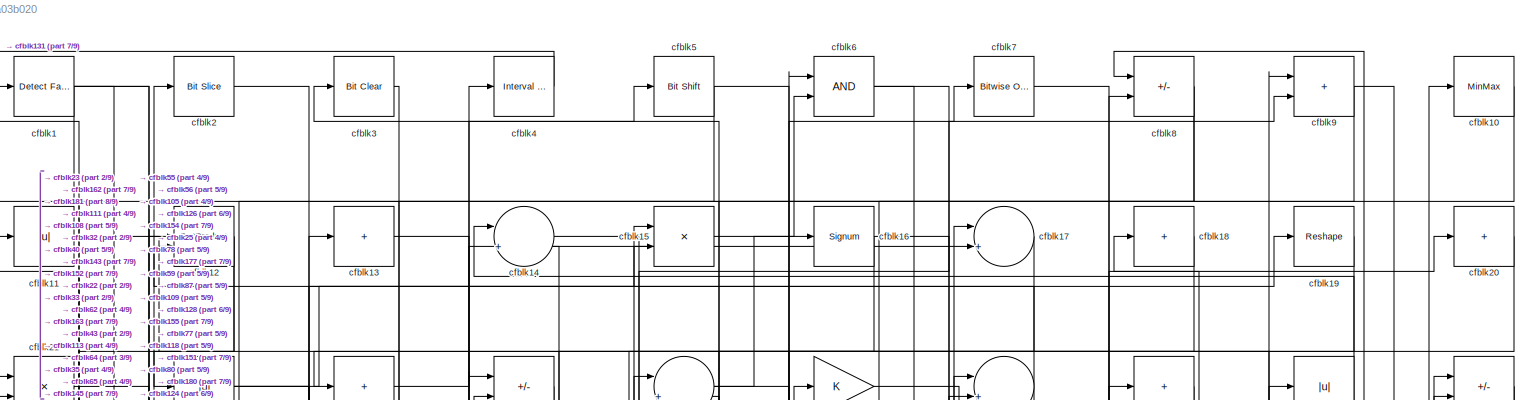
[diagram: root canvas - part 1/9, full width, top band]
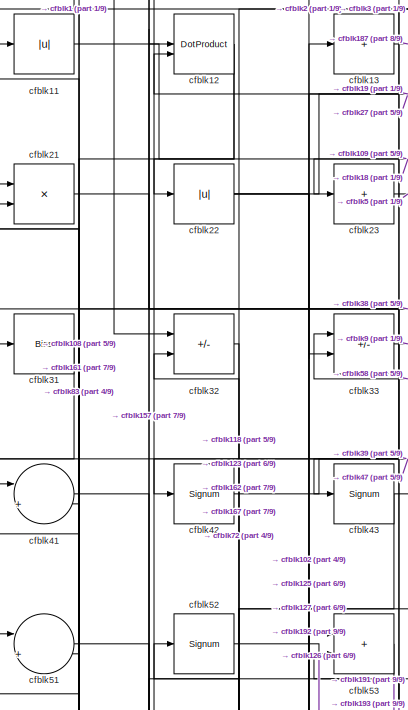
[diagram: root canvas - part 2/9, top left region]
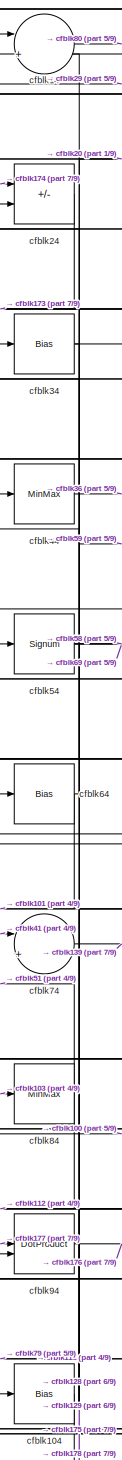
[diagram: root canvas - part 3/9, top center region]
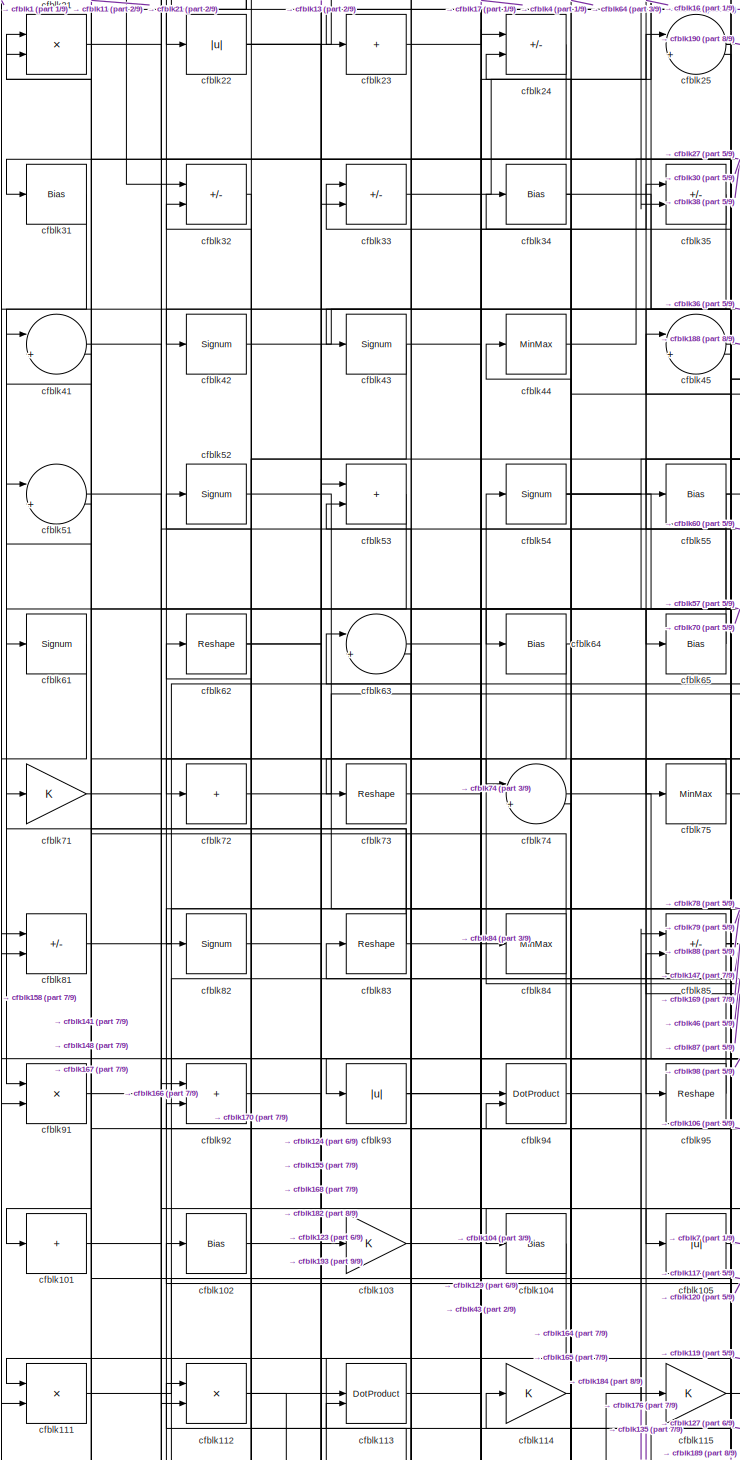
[diagram: root canvas - part 4/9, middle left region]
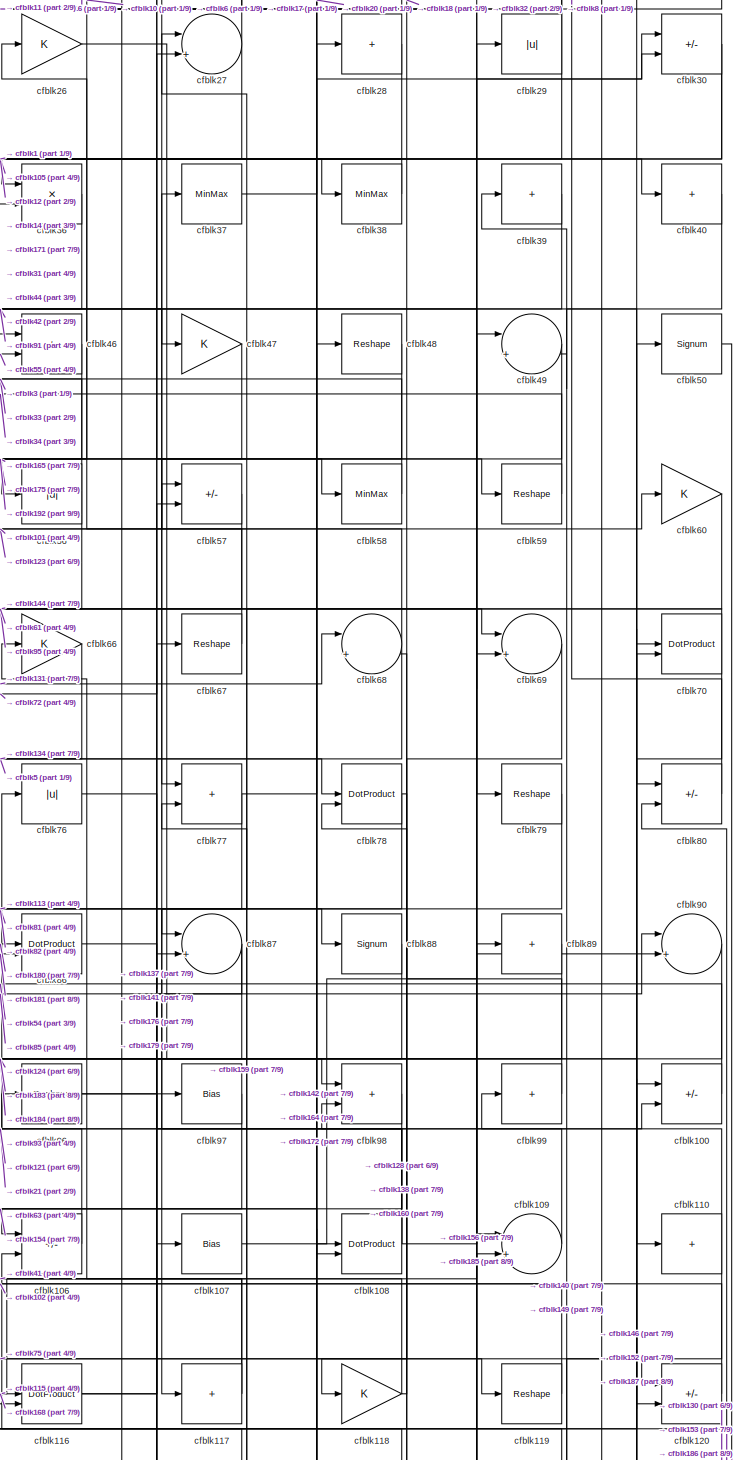
[diagram: root canvas - part 5/9, middle right region]
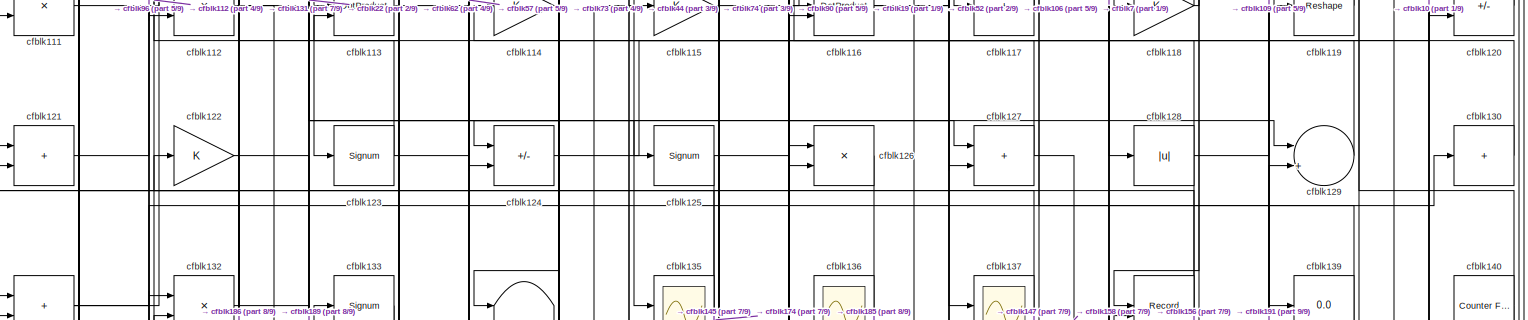
[diagram: root canvas - part 6/9, full width, middle band]
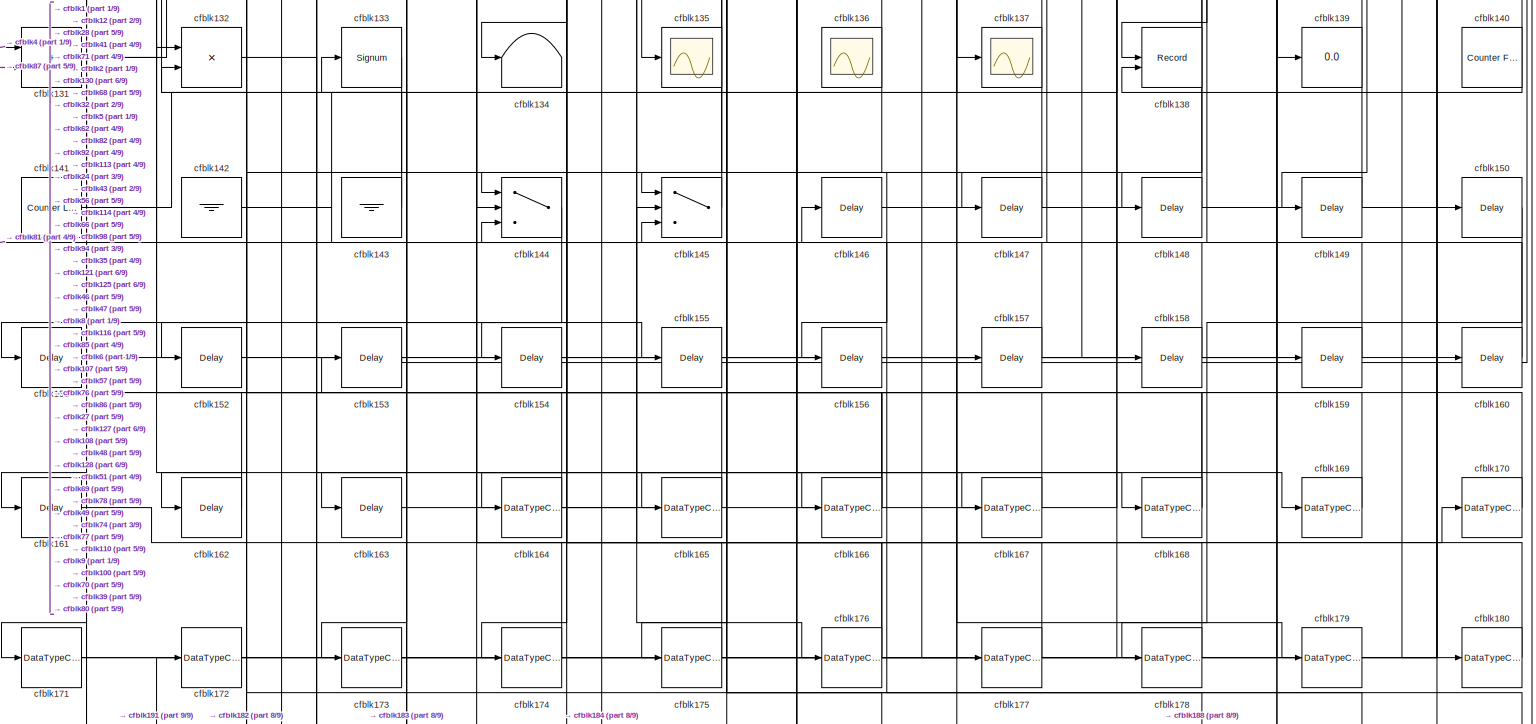
[diagram: root canvas - part 7/9, full width, bottom band]
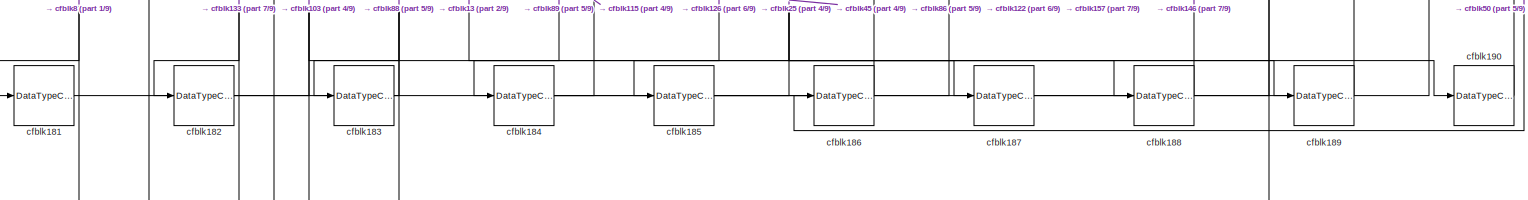
[diagram: root canvas - part 8/9, full width, bottom band]
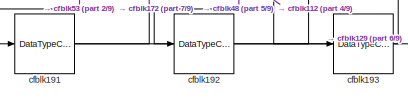
[diagram: root canvas - part 9/9, bottom left region]
MODEL slx_ab909a03b020
KIND model
CONFIG AbsTol = auto
CONFIG EnableMultiTasking = off
CONFIG FixedStep = auto
CONFIG MaxStep = auto
CONFIG MinStep = auto
CONFIG RelTol = 1e-3
CONFIG SampleTimeConstraint = Unconstrained
CONFIG SolverName = VariableStepAuto
CONFIG StartTime = 0.0
CONFIG StopTime = 10.0
BLOCK [Reference] cfblk1  REF=hdlsllib/Logic and Bit
Operations/Detect Fall
Negative
  SourceBlock = hdlsllib/Logic and Bit\nOperations/Detect Fall\nNegative
  SourceType = Detect Fall Negative
BLOCK [MinMax] cfblk10
BLOCK [Sum] cfblk100
  IconShape = rectangular
  Inputs = +-
BLOCK [Sum] cfblk101
  IconShape = rectangular
  Inputs = +
BLOCK [Bias] cfblk102
  Bias = 0.0
  SaturateOnIntegerOverflow = off
BLOCK [Gain] cfblk103
BLOCK [Bias] cfblk104
  Bias = 0.0
  SaturateOnIntegerOverflow = off
BLOCK [Abs] cfblk105
  SaturateOnIntegerOverflow = off
BLOCK [Sum] cfblk106
  IconShape = rectangular
  Inputs = +-
BLOCK [Bias] cfblk107
  Bias = 0.0
  SaturateOnIntegerOverflow = off
BLOCK [DotProduct] cfblk108
  OutDataTypeStr = Inherit: Inherit via internal rule
BLOCK [Sum] cfblk109
  Inputs = |++
BLOCK [Abs] cfblk11
  SaturateOnIntegerOverflow = off
BLOCK [Sum] cfblk110
  IconShape = rectangular
  Inputs = +
BLOCK [Product] cfblk111
  Inputs = */
  RndMeth = Zero
  SaturateOnIntegerOverflow = on
BLOCK [Product] cfblk112
  Inputs = */
  RndMeth = Zero
  SaturateOnIntegerOverflow = on
BLOCK [DotProduct] cfblk113
  OutDataTypeStr = Inherit: Inherit via internal rule
BLOCK [Gain] cfblk114
BLOCK [Gain] cfblk115
BLOCK [DotProduct] cfblk116
  OutDataTypeStr = Inherit: Inherit via internal rule
BLOCK [Sum] cfblk117
  IconShape = rectangular
  Inputs = +
BLOCK [Gain] cfblk118
BLOCK [Reshape] cfblk119
BLOCK [DotProduct] cfblk12
  OutDataTypeStr = Inherit: Inherit via internal rule
BLOCK [Sum] cfblk120
  IconShape = rectangular
  Inputs = +-
BLOCK [Sum] cfblk121
  IconShape = rectangular
BLOCK [Gain] cfblk122
BLOCK [Signum] cfblk123
BLOCK [Sum] cfblk124
  IconShape = rectangular
  Inputs = +-
BLOCK [Signum] cfblk125
BLOCK [Product] cfblk126
  Inputs = */
  RndMeth = Zero
  SaturateOnIntegerOverflow = on
BLOCK [Sum] cfblk127
  IconShape = rectangular
BLOCK [Abs] cfblk128
  SaturateOnIntegerOverflow = off
BLOCK [Sum] cfblk129
  Inputs = |++
BLOCK [Sum] cfblk13
  IconShape = rectangular
  Inputs = +
BLOCK [Sum] cfblk130
  IconShape = rectangular
  Inputs = +
BLOCK [Sum] cfblk131
  IconShape = rectangular
BLOCK [Product] cfblk132
  Inputs = */
  RndMeth = Zero
  SaturateOnIntegerOverflow = on
BLOCK [Signum] cfblk133
BLOCK [Terminator] cfblk134
BLOCK [Scope] cfblk135
  Floating = off
  NumInputPorts = 1
  ScopeSpecificationString = Simulink.scopes.TimeScopeBlockCfg('CurrentConfiguration', extmgr.ConfigurationSet(extmgr.Configuration('Core','General UI',true),extmgr.Configuration('Core','Source UI',true),extmgr.Configuration('Sources','WiredSimulink',true,'DataLoggingVariableName','ScopeData2','DataLoggingSaveFormat','Array','DataLoggingLimitDataPoints',true,'DataLoggingDecimation','1'),extmgr.Configuration('Visuals','Time Do...<+868ch>
BLOCK [Scope] cfblk136
  Floating = on
  NumInputPorts = 1
  ScopeSpecificationString = Simulink.scopes.TimeScopeBlockCfg('CurrentConfiguration', extmgr.ConfigurationSet(extmgr.Configuration('Core','General UI',true,'FigureColor',[0.156862745098039 0.156862745098039 0.156862745098039]),extmgr.Configuration('Core','Source UI',true),extmgr.Configuration('Sources','WiredSimulink',true,'DataLoggingVariableName','ScopeData1','DataLoggingSaveFormat','StructureWithTime','DataLoggingLimitDat...<+2713ch>
BLOCK [Scope] cfblk137
  Floating = off
  NumInputPorts = 1
  ScopeSpecificationString = Simulink.scopes.TimeScopeBlockCfg('CurrentConfiguration', extmgr.ConfigurationSet(extmgr.Configuration('Core','General UI',true),extmgr.Configuration('Core','Source UI',true),extmgr.Configuration('Sources','WiredSimulink',true,'DataLoggingVariableName','ScopeData2','DataLoggingSaveFormat','Array','DataLoggingLimitDataPoints',true,'DataLoggingDecimation','1'),extmgr.Configuration('Visuals','Time Do...<+868ch>
BLOCK [Record] cfblk138
  CompatibilityTag = XY
  FileSettingsInternal = {"entries":[{"content":{"excelSettings":{"content":{},"type":"Streamout.ExcelSettings"}},"type":"Streamout.FileSettingStorage","uuid":""}],"packageUris":["http:\/\/schema.mathworks.com\/mf0\/streamout_blocks\/R2020a"],"version":"1.0"}
  Layout = [1 1]
  SignalsInternal = {"entries":[{"content":{"signals":[{"content":{"blockPath":[],"dimensions":[1],"domain":"","lineColor":"#a2142f","plots":[1],"port":1,"signalID":3847,"signalName":"XY Graph:1"},"type":"RecordBlkView.Signal","uuid":""},{"content":{"blockPath":[],"dimensions":[1],"domain":"","lineColor":"#139fff","plots":[1],"port":2,"signalID":3850,"signalName":"XY Graph:2"},"type":"RecordBlkView.Signal","uuid":""}...<+146ch>
  VisualizationBindings = {"xyplotplugin":{"info":[{"series":[{"bindingParametersList":[{"parameter":"X-Axis","signalID":3847,"signalName":"XY Graph:1"},{"parameter":"Y-Axis","signalID":3850,"signalName":"XY Graph:2"}],"seriesID":23511}],"subplotID":1}]}}
  st = -1
BLOCK [Display] cfblk139
  Decimation = 1
BLOCK [Sum] cfblk14
  Inputs = |++
BLOCK [Reference] cfblk140  REF=hdlsllib/Sources/Counter
Free-Running
  SourceBlock = hdlsllib/Sources/Counter\nFree-Running
  SourceType = Counter Free-Running
BLOCK [Reference] cfblk141  REF=hdlsllib/Sources/Counter
Limited
  SourceBlock = hdlsllib/Sources/Counter\nLimited
  SourceType = Counter Limited
BLOCK [Ground] cfblk142
BLOCK [Ground] cfblk143
BLOCK [Switch] cfblk144
  InputSameDT = off
  SaturateOnIntegerOverflow = off
BLOCK [Switch] cfblk145
  InputSameDT = off
  SaturateOnIntegerOverflow = off
BLOCK [Delay] cfblk146
  InputPortMap = u0
  SampleTime = 1
BLOCK [Delay] cfblk147
  InputPortMap = u0
  SampleTime = 1
BLOCK [Delay] cfblk148
  InputPortMap = u0
  SampleTime = 1
BLOCK [Delay] cfblk149
  InputPortMap = u0
  SampleTime = 1
BLOCK [Product] cfblk15
  Inputs = */
  RndMeth = Zero
  SaturateOnIntegerOverflow = on
BLOCK [Delay] cfblk150
  InputPortMap = u0
  SampleTime = 1
BLOCK [Delay] cfblk151
  InputPortMap = u0
  SampleTime = 1
BLOCK [Delay] cfblk152
  InputPortMap = u0
  SampleTime = 1
BLOCK [Delay] cfblk153
  InputPortMap = u0
  SampleTime = 1
BLOCK [Delay] cfblk154
  InputPortMap = u0
  SampleTime = 1
BLOCK [Delay] cfblk155
  InputPortMap = u0
  SampleTime = 1
BLOCK [Delay] cfblk156
  InputPortMap = u0
  SampleTime = 1
BLOCK [Delay] cfblk157
  InputPortMap = u0
  SampleTime = 1
BLOCK [Delay] cfblk158
  InputPortMap = u0
  SampleTime = 1
BLOCK [Delay] cfblk159
  InputPortMap = u0
  SampleTime = 1
BLOCK [Signum] cfblk16
BLOCK [Delay] cfblk160
  InputPortMap = u0
  SampleTime = 1
BLOCK [Delay] cfblk161
  InputPortMap = u0
  SampleTime = 1
BLOCK [Delay] cfblk162
  InputPortMap = u0
  SampleTime = 1
BLOCK [Delay] cfblk163
  InputPortMap = u0
  SampleTime = 1
BLOCK [DataTypeConversion] cfblk164
  RndMeth = Floor
  SaturateOnIntegerOverflow = off
BLOCK [DataTypeConversion] cfblk165
  OutDataTypeStr = uint8
  RndMeth = Floor
  SaturateOnIntegerOverflow = off
BLOCK [DataTypeConversion] cfblk166
  RndMeth = Floor
  SaturateOnIntegerOverflow = off
BLOCK [DataTypeConversion] cfblk167
  OutDataTypeStr = uint8
  RndMeth = Floor
  SaturateOnIntegerOverflow = off
BLOCK [DataTypeConversion] cfblk168
  RndMeth = Floor
  SaturateOnIntegerOverflow = off
BLOCK [DataTypeConversion] cfblk169
  OutDataTypeStr = uint8
  RndMeth = Floor
  SaturateOnIntegerOverflow = off
BLOCK [Sum] cfblk17
  Inputs = |++
BLOCK [DataTypeConversion] cfblk170
  OutDataTypeStr = uint8
  RndMeth = Floor
  SaturateOnIntegerOverflow = off
BLOCK [DataTypeConversion] cfblk171
  RndMeth = Floor
  SaturateOnIntegerOverflow = off
BLOCK [DataTypeConversion] cfblk172
  OutDataTypeStr = uint8
  RndMeth = Floor
  SaturateOnIntegerOverflow = off
BLOCK [DataTypeConversion] cfblk173
  OutDataTypeStr = uint8
  RndMeth = Floor
  SaturateOnIntegerOverflow = off
BLOCK [DataTypeConversion] cfblk174
  OutDataTypeStr = uint8
  RndMeth = Floor
  SaturateOnIntegerOverflow = off
BLOCK [DataTypeConversion] cfblk175
  OutDataTypeStr = uint8
  RndMeth = Floor
  SaturateOnIntegerOverflow = off
BLOCK [DataTypeConversion] cfblk176
  RndMeth = Floor
  SaturateOnIntegerOverflow = off
BLOCK [DataTypeConversion] cfblk177
  OutDataTypeStr = uint8
  RndMeth = Floor
  SaturateOnIntegerOverflow = off
BLOCK [DataTypeConversion] cfblk178
  OutDataTypeStr = uint8
  RndMeth = Floor
  SaturateOnIntegerOverflow = off
BLOCK [DataTypeConversion] cfblk179
  OutDataTypeStr = uint8
  RndMeth = Floor
  SaturateOnIntegerOverflow = off
BLOCK [Sum] cfblk18
  IconShape = rectangular
  Inputs = +
BLOCK [DataTypeConversion] cfblk180
  OutDataTypeStr = uint8
  RndMeth = Floor
  SaturateOnIntegerOverflow = off
BLOCK [DataTypeConversion] cfblk181
  OutDataTypeStr = uint8
  RndMeth = Floor
  SaturateOnIntegerOverflow = off
BLOCK [DataTypeConversion] cfblk182
  OutDataTypeStr = uint8
  RndMeth = Floor
  SaturateOnIntegerOverflow = off
BLOCK [DataTypeConversion] cfblk183
  OutDataTypeStr = uint8
  RndMeth = Floor
  SaturateOnIntegerOverflow = off
BLOCK [DataTypeConversion] cfblk184
  RndMeth = Floor
  SaturateOnIntegerOverflow = off
BLOCK [DataTypeConversion] cfblk185
  OutDataTypeStr = uint8
  RndMeth = Floor
  SaturateOnIntegerOverflow = off
BLOCK [DataTypeConversion] cfblk186
  OutDataTypeStr = uint8
  RndMeth = Floor
  SaturateOnIntegerOverflow = off
BLOCK [DataTypeConversion] cfblk187
  OutDataTypeStr = uint8
  RndMeth = Floor
  SaturateOnIntegerOverflow = off
BLOCK [DataTypeConversion] cfblk188
  OutDataTypeStr = uint8
  RndMeth = Floor
  SaturateOnIntegerOverflow = off
BLOCK [DataTypeConversion] cfblk189
  OutDataTypeStr = uint8
  RndMeth = Floor
  SaturateOnIntegerOverflow = off
BLOCK [Reshape] cfblk19
BLOCK [DataTypeConversion] cfblk190
  OutDataTypeStr = uint8
  RndMeth = Floor
  SaturateOnIntegerOverflow = off
BLOCK [DataTypeConversion] cfblk191
  RndMeth = Floor
  SaturateOnIntegerOverflow = off
BLOCK [DataTypeConversion] cfblk192
  OutDataTypeStr = uint8
  RndMeth = Floor
  SaturateOnIntegerOverflow = off
BLOCK [DataTypeConversion] cfblk193
  OutDataTypeStr = uint8
  RndMeth = Floor
  SaturateOnIntegerOverflow = off
BLOCK [Reference] cfblk2  REF=hdlsllib/Logic and Bit
Operations/Bit Slice
  SourceBlock = hdlsllib/Logic and Bit\nOperations/Bit Slice
  SourceType = Bit Slice
BLOCK [Sum] cfblk20
  IconShape = rectangular
  Inputs = +
BLOCK [Product] cfblk21
  Inputs = */
  RndMeth = Zero
  SaturateOnIntegerOverflow = on
BLOCK [Abs] cfblk22
  SaturateOnIntegerOverflow = off
BLOCK [Sum] cfblk23
  IconShape = rectangular
  Inputs = +
BLOCK [Sum] cfblk24
  IconShape = rectangular
  Inputs = +-
BLOCK [Sum] cfblk25
  Inputs = |++
BLOCK [Gain] cfblk26
BLOCK [Sum] cfblk27
  Inputs = |++
BLOCK [Sum] cfblk28
  IconShape = rectangular
  Inputs = +
BLOCK [Abs] cfblk29
  SaturateOnIntegerOverflow = off
BLOCK [Reference] cfblk3  REF=simulink/Logic and Bit
Operations/Bit Clear
  LibrarySourceBlock = hdlsllib/Logic and Bit\nOperations/Bit Clear
  SourceBlock = simulink/Logic and Bit\nOperations/Bit Clear
  SourceType = Bit Clear
BLOCK [Sum] cfblk30
  IconShape = rectangular
  Inputs = +-
BLOCK [Bias] cfblk31
  Bias = 0.0
  SaturateOnIntegerOverflow = off
BLOCK [Sum] cfblk32
  IconShape = rectangular
  Inputs = +-
BLOCK [Sum] cfblk33
  IconShape = rectangular
  Inputs = +-
BLOCK [Bias] cfblk34
  Bias = 0.0
  SaturateOnIntegerOverflow = off
BLOCK [Sum] cfblk35
  IconShape = rectangular
  Inputs = +-
BLOCK [Product] cfblk36
  Inputs = */
  RndMeth = Zero
  SaturateOnIntegerOverflow = on
BLOCK [MinMax] cfblk37
BLOCK [MinMax] cfblk38
BLOCK [Sum] cfblk39
  IconShape = rectangular
  Inputs = +
BLOCK [Reference] cfblk4  REF=hdlsllib/Logic and Bit
Operations/Interval Test
  SourceBlock = hdlsllib/Logic and Bit\nOperations/Interval Test
  SourceType = Interval Test
BLOCK [Sum] cfblk40
  IconShape = rectangular
  Inputs = +
BLOCK [Sum] cfblk41
  Inputs = |++
BLOCK [Signum] cfblk42
BLOCK [Signum] cfblk43
BLOCK [MinMax] cfblk44
BLOCK [Sum] cfblk45
  Inputs = |++
BLOCK [Sum] cfblk46
  IconShape = rectangular
BLOCK [Gain] cfblk47
BLOCK [Reshape] cfblk48
BLOCK [Sum] cfblk49
  Inputs = |++
BLOCK [Reference] cfblk5  REF=hdlsllib/Logic and Bit
Operations/Bit Shift
  SourceBlock = hdlsllib/Logic and Bit\nOperations/Bit Shift
  SourceType = Bit Shift
BLOCK [Signum] cfblk50
BLOCK [Sum] cfblk51
  Inputs = |++
BLOCK [Signum] cfblk52
BLOCK [Sum] cfblk53
  IconShape = rectangular
BLOCK [Signum] cfblk54
BLOCK [Bias] cfblk55
  Bias = 0.0
  SaturateOnIntegerOverflow = off
BLOCK [Abs] cfblk56
  SaturateOnIntegerOverflow = off
BLOCK [Sum] cfblk57
  IconShape = rectangular
  Inputs = +-
BLOCK [MinMax] cfblk58
BLOCK [Reshape] cfblk59
BLOCK [Logic] cfblk6
  AllPortsSameDT = off
  OutDataTypeStr = boolean
BLOCK [Gain] cfblk60
BLOCK [Signum] cfblk61
BLOCK [Reshape] cfblk62
BLOCK [Sum] cfblk63
  Inputs = |++
BLOCK [Bias] cfblk64
  Bias = 0.0
  SaturateOnIntegerOverflow = off
BLOCK [Bias] cfblk65
  Bias = 0.0
  SaturateOnIntegerOverflow = off
BLOCK [Gain] cfblk66
BLOCK [Reshape] cfblk67
BLOCK [Sum] cfblk68
  Inputs = |++
BLOCK [Sum] cfblk69
  Inputs = |++
BLOCK [Reference] cfblk7  REF=simulink/Logic and Bit
Operations/Bitwise
Operator
  LibrarySourceBlock = hdlsllib/Logic and Bit\nOperations/Bitwise\nOperator
  SourceBlock = simulink/Logic and Bit\nOperations/Bitwise\nOperator
  SourceType = Bitwise Operator
BLOCK [DotProduct] cfblk70
  OutDataTypeStr = Inherit: Inherit via internal rule
BLOCK [Gain] cfblk71
BLOCK [Sum] cfblk72
  IconShape = rectangular
  Inputs = +
BLOCK [Reshape] cfblk73
BLOCK [Sum] cfblk74
  Inputs = |++
BLOCK [MinMax] cfblk75
BLOCK [Abs] cfblk76
  SaturateOnIntegerOverflow = off
BLOCK [Sum] cfblk77
  IconShape = rectangular
BLOCK [DotProduct] cfblk78
  OutDataTypeStr = Inherit: Inherit via internal rule
BLOCK [Reshape] cfblk79
BLOCK [Sum] cfblk8
  IconShape = rectangular
  Inputs = +-
BLOCK [Sum] cfblk80
  IconShape = rectangular
  Inputs = +-
BLOCK [Sum] cfblk81
  IconShape = rectangular
  Inputs = +-
BLOCK [Signum] cfblk82
BLOCK [Reshape] cfblk83
BLOCK [MinMax] cfblk84
BLOCK [Sum] cfblk85
  IconShape = rectangular
  Inputs = +-
BLOCK [DotProduct] cfblk86
  OutDataTypeStr = Inherit: Inherit via internal rule
BLOCK [Sum] cfblk87
  Inputs = |++
BLOCK [Signum] cfblk88
BLOCK [Sum] cfblk89
  IconShape = rectangular
  Inputs = +
BLOCK [Sum] cfblk9
  IconShape = rectangular
BLOCK [Sum] cfblk90
  Inputs = |++
BLOCK [Product] cfblk91
  Inputs = */
  RndMeth = Zero
  SaturateOnIntegerOverflow = on
BLOCK [Sum] cfblk92
  IconShape = rectangular
BLOCK [Abs] cfblk93
  SaturateOnIntegerOverflow = off
BLOCK [DotProduct] cfblk94
  OutDataTypeStr = Inherit: Inherit via internal rule
BLOCK [Reshape] cfblk95
BLOCK [Reshape] cfblk96
BLOCK [Bias] cfblk97
  Bias = 0.0
  SaturateOnIntegerOverflow = off
BLOCK [Sum] cfblk98
  IconShape = rectangular
BLOCK [Sum] cfblk99
  IconShape = rectangular
  Inputs = +
LINE cfblk100:1 -> cfblk54:1
LINE cfblk101:1 -> cfblk60:1
LINE cfblk102:1 -> cfblk13:1
LINE cfblk103:1 -> cfblk84:1
LINE cfblk104:1 -> cfblk111:1
LINE cfblk105:1 -> cfblk7:1
LINE cfblk106:1 -> cfblk63:1
LINE cfblk107:1 -> cfblk29:1
NET cfblk108:1 -> cfblk21:1, cfblk76:1, cfblk90:2, cfblk98:2
LINE cfblk109:1 -> cfblk17:1
LINE cfblk10:1 -> cfblk56:1
NET cfblk110:1 -> cfblk149:1, cfblk99:1
LINE cfblk111:1 -> cfblk4:1
NET cfblk112:1 -> cfblk123:1, cfblk193:1
LINE cfblk113:1 -> cfblk17:2
LINE cfblk114:1 -> cfblk164:1
LINE cfblk115:1 -> cfblk30:1
NET cfblk116:1 -> cfblk67:1, cfblk90:1
NET cfblk117:1 -> cfblk41:2, cfblk66:1
NET cfblk118:1 -> cfblk18:1, cfblk32:2
LINE cfblk119:1 -> cfblk63:2
LINE cfblk11:1 -> cfblk109:1
LINE cfblk120:1 -> cfblk102:1
LINE cfblk121:1 -> cfblk96:1
LINE cfblk122:1 -> cfblk189:1
NET cfblk123:1 -> cfblk52:1, cfblk57:1
LINE cfblk124:1 -> cfblk10:1
NET cfblk125:1 -> cfblk127:1, cfblk174:1
LINE cfblk126:1 -> cfblk185:1
NET cfblk127:1 -> cfblk112:1, cfblk158:1
NET cfblk128:1 -> cfblk109:2, cfblk156:1, cfblk74:2
LINE cfblk129:1 -> cfblk44:1
NET cfblk12:1 -> cfblk161:1, cfblk22:1
LINE cfblk130:1 -> cfblk106:2
NET cfblk131:1 -> cfblk130:1, cfblk68:1
LINE cfblk132:1 -> cfblk148:1
LINE cfblk133:1 -> cfblk182:1
LINE cfblk13:1 -> cfblk187:1
NET cfblk140:1 -> cfblk138:2, cfblk39:1
NET cfblk141:1 -> cfblk107:1, cfblk41:1
NET cfblk142:1 -> cfblk145:3, cfblk48:1
LINE cfblk143:1 -> cfblk2:1
LINE cfblk144:1 -> cfblk151:1
LINE cfblk145:1 -> cfblk121:2
LINE cfblk146:1 -> cfblk70:2
LINE cfblk147:1 -> cfblk121:1
LINE cfblk148:1 -> cfblk51:1
LINE cfblk149:1 -> cfblk77:2
LINE cfblk14:1 -> cfblk80:1
LINE cfblk150:1 -> cfblk178:1
LINE cfblk151:1 -> cfblk9:1
LINE cfblk152:1 -> cfblk100:1
LINE cfblk153:1 -> cfblk80:2
LINE cfblk154:1 -> cfblk6:1
LINE cfblk155:1 -> cfblk8:2
LINE cfblk156:1 -> cfblk49:1
LINE cfblk157:1 -> cfblk12:1
LINE cfblk158:1 -> cfblk81:1
LINE cfblk159:1 -> cfblk27:1
LINE cfblk15:1 -> cfblk6:2
LINE cfblk160:1 -> cfblk78:2
LINE cfblk161:1 -> cfblk170:1
LINE cfblk162:1 -> cfblk1:1
LINE cfblk163:1 -> cfblk145:2
NET cfblk164:1 -> cfblk108:1, cfblk62:1
LINE cfblk165:1 -> cfblk114:1
NET cfblk166:1 -> cfblk113:2, cfblk132:2, cfblk153:1
LINE cfblk167:1 -> cfblk71:1
NET cfblk168:1 -> cfblk116:1, cfblk132:1
LINE cfblk169:1 -> cfblk92:1
NET cfblk16:1 -> cfblk35:2, cfblk59:1
LINE cfblk170:1 -> cfblk92:2
NET cfblk171:1 -> cfblk159:1, cfblk160:1
LINE cfblk172:1 -> cfblk28:1
LINE cfblk173:1 -> cfblk150:1
LINE cfblk174:1 -> cfblk24:1
LINE cfblk175:1 -> cfblk24:2
NET cfblk176:1 -> cfblk144:3, cfblk57:2, cfblk85:1
LINE cfblk177:1 -> cfblk94:1
LINE cfblk178:1 -> cfblk94:2
LINE cfblk179:1 -> cfblk70:1
LINE cfblk17:1 -> cfblk55:1
LINE cfblk180:1 -> cfblk86:1
LINE cfblk181:1 -> cfblk86:2
LINE cfblk182:1 -> cfblk103:1
LINE cfblk183:1 -> cfblk133:1
NET cfblk184:1 -> cfblk115:1, cfblk157:1
LINE cfblk185:1 -> cfblk89:1
LINE cfblk186:1 -> cfblk122:1
LINE cfblk187:1 -> cfblk50:1
LINE cfblk188:1 -> cfblk146:1
LINE cfblk189:1 -> cfblk45:1
LINE cfblk18:1 -> cfblk43:1
LINE cfblk190:1 -> cfblk45:2
NET cfblk191:1 -> cfblk129:2, cfblk172:1
LINE cfblk192:1 -> cfblk53:1
LINE cfblk193:1 -> cfblk53:2
LINE cfblk19:1 -> cfblk126:2
NET cfblk1:1 -> cfblk108:2, cfblk111:2, cfblk32:1, cfblk40:1
LINE cfblk20:1 -> cfblk64:1
LINE cfblk21:1 -> cfblk38:1
NET cfblk22:1 -> cfblk125:1, cfblk127:2, cfblk19:1
LINE cfblk23:1 -> cfblk5:1
LINE cfblk24:1 -> cfblk173:1
NET cfblk25:1 -> cfblk16:1, cfblk190:1
LINE cfblk26:1 -> cfblk110:1
NET cfblk27:1 -> cfblk105:1, cfblk12:2
LINE cfblk28:1 -> cfblk171:1
NET cfblk29:1 -> cfblk116:2, cfblk14:1
LINE cfblk2:1 -> cfblk33:2
NET cfblk30:1 -> cfblk36:2, cfblk75:1
LINE cfblk31:1 -> cfblk91:1
LINE cfblk32:1 -> cfblk162:1
LINE cfblk33:1 -> cfblk9:2
NET cfblk34:1 -> cfblk104:1, cfblk79:1
LINE cfblk35:1 -> cfblk135:1
LINE cfblk36:1 -> cfblk91:2
LINE cfblk37:1 -> cfblk30:2
LINE cfblk38:1 -> cfblk31:1
LINE cfblk39:1 -> cfblk42:1
LINE cfblk3:1 -> cfblk23:1
LINE cfblk40:1 -> cfblk49:2
LINE cfblk41:1 -> cfblk74:1
LINE cfblk42:1 -> cfblk47:1
NET cfblk43:1 -> cfblk167:1, cfblk72:1
LINE cfblk44:1 -> cfblk36:1
LINE cfblk45:1 -> cfblk188:1
LINE cfblk46:1 -> cfblk175:1
LINE cfblk47:1 -> cfblk165:1
LINE cfblk48:1 -> cfblk192:1
LINE cfblk49:1 -> cfblk77:1
LINE cfblk4:1 -> cfblk131:1
LINE cfblk50:1 -> cfblk186:1
LINE cfblk51:1 -> cfblk65:1
LINE cfblk52:1 -> cfblk126:1
LINE cfblk53:1 -> cfblk191:1
NET cfblk54:1 -> cfblk58:1, cfblk69:1, cfblk69:2
NET cfblk55:1 -> cfblk25:2, cfblk46:2, cfblk93:1
NET cfblk56:1 -> cfblk144:2, cfblk3:1
LINE cfblk57:1 -> cfblk95:1
LINE cfblk58:1 -> cfblk33:1
LINE cfblk59:1 -> cfblk34:1
NET cfblk5:1 -> cfblk152:1, cfblk78:1
LINE cfblk60:1 -> cfblk87:1
LINE cfblk61:1 -> cfblk81:2
NET cfblk62:1 -> cfblk124:2, cfblk15:2
LINE cfblk63:1 -> cfblk35:1
NET cfblk64:1 -> cfblk101:1, cfblk14:2
LINE cfblk65:1 -> cfblk15:1
LINE cfblk66:1 -> cfblk134:1
LINE cfblk67:1 -> cfblk26:1
NET cfblk68:1 -> cfblk144:1, cfblk37:1
LINE cfblk69:1 -> cfblk138:1
NET cfblk6:1 -> cfblk177:1, cfblk87:2
NET cfblk70:1 -> cfblk120:2, cfblk61:1
LINE cfblk71:1 -> cfblk166:1
LINE cfblk72:1 -> cfblk27:2
LINE cfblk73:1 -> cfblk129:1
LINE cfblk74:1 -> cfblk139:1
NET cfblk75:1 -> cfblk120:1, cfblk73:1
LINE cfblk76:1 -> cfblk137:1
NET cfblk77:1 -> cfblk117:1, cfblk20:1
NET cfblk78:1 -> cfblk113:1, cfblk118:1
LINE cfblk79:1 -> cfblk82:1
LINE cfblk7:1 -> cfblk128:1
LINE cfblk80:1 -> cfblk8:1
LINE cfblk81:1 -> cfblk88:1
LINE cfblk82:1 -> cfblk155:1
NET cfblk83:1 -> cfblk11:1, cfblk21:2, cfblk25:1
NET cfblk84:1 -> cfblk112:2, cfblk51:2
NET cfblk85:1 -> cfblk147:1, cfblk169:1
LINE cfblk86:1 -> cfblk179:1
NET cfblk87:1 -> cfblk131:2, cfblk85:2
LINE cfblk88:1 -> cfblk183:1
LINE cfblk89:1 -> cfblk184:1
NET cfblk8:1 -> cfblk145:1, cfblk181:1
LINE cfblk90:1 -> cfblk124:1
LINE cfblk91:1 -> cfblk46:1
LINE cfblk92:1 -> cfblk168:1
NET cfblk93:1 -> cfblk119:1, cfblk98:1
LINE cfblk94:1 -> cfblk176:1
LINE cfblk95:1 -> cfblk83:1
NET cfblk96:1 -> cfblk100:2, cfblk97:1
LINE cfblk97:1 -> cfblk106:1
LINE cfblk98:1 -> cfblk154:1
LINE cfblk99:1 -> cfblk68:2
NET cfblk9:1 -> cfblk163:1, cfblk180:1
note: NET lines group one-source signal fan-out (src -> all destinations, sorted); 1:1 wires keep LINE
